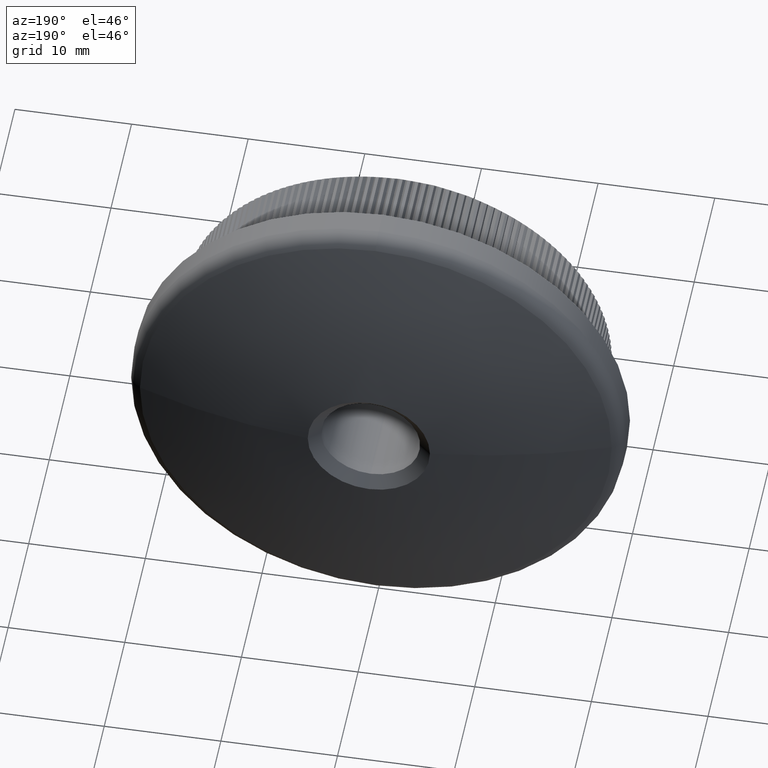
[diagram: clean part render]
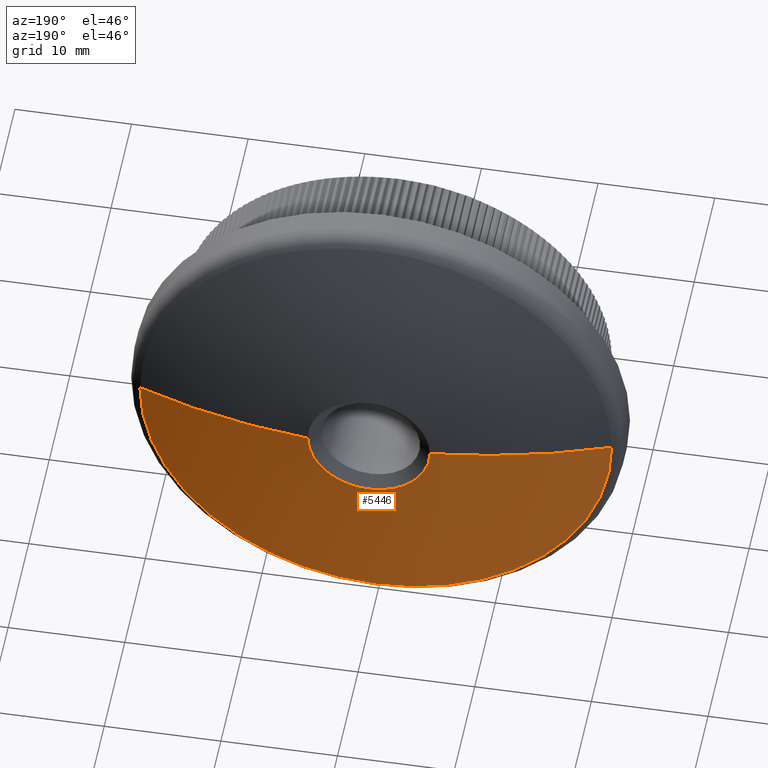
[diagram: same view with one face highlighted and labeled with its STEP entity id]
A machine part, auxiliary view. The second image highlights one B-rep face of the part: STEP entity #5446.
In plain terms, the highlighted spherical surface has radius 58.18 mm.
Its self-contained STEP definition (entity closure, byte-faithful):
#360 = AXIS2_PLACEMENT_3D ( 'NONE', #30629, #6979, #25947 ) ;
#442 = DIRECTION ( 'NONE',  ( -0.0000000000000000000, -1.000000000000000000, -0.0000000000000000000 ) ) ;
#507 = DIRECTION ( 'NONE',  ( 0.0000000000000000000, 0.0000000000000000000, -1.000000000000000000 ) ) ;
#933 = CARTESIAN_POINT ( 'NONE',  ( -5.238283644243428400, 14.76370357909867400, 1.558952815017000300E-015 ) ) ;
#1198 = AXIS2_PLACEMENT_3D ( 'NONE', #20849, #21272, #6734 ) ;
#1601 = EDGE_CURVE ( 'NONE', #5874, #20984, #14547, .T. ) ;
#1918 = AXIS2_PLACEMENT_3D ( 'NONE', #9639, #442, #19401 ) ;
#2255 = CIRCLE ( 'NONE', #1918, 5.238283644243428400 ) ;
#2604 = ORIENTED_EDGE ( 'NONE', *, *, #1601, .F. ) ;
#3289 = VERTEX_POINT ( 'NONE', #25928 ) ;
#3741 = CARTESIAN_POINT ( 'NONE',  ( 6.415047297948654100E-016, 14.76370357909867400, -5.238283644243433700 ) ) ;
#3792 = ORIENTED_EDGE ( 'NONE', *, *, #26548, .T. ) ;
#5262 = DIRECTION ( 'NONE',  ( -0.0000000000000000000, -1.000000000000000000, -0.0000000000000000000 ) ) ;
#5446 = ADVANCED_FACE ( 'NONE', ( #17799 ), #20395, .T. ) ;
#5672 = ORIENTED_EDGE ( 'NONE', *, *, #23170, .T. ) ;
#5874 = VERTEX_POINT ( 'NONE', #933 ) ;
#5902 = DIRECTION ( 'NONE',  ( 0.0000000000000000000, 0.0000000000000000000, 1.000000000000000000 ) ) ;
#6734 = DIRECTION ( 'NONE',  ( 1.000000000000000000, 0.0000000000000000000, -1.224646799147353500E-016 ) ) ;
#6979 = DIRECTION ( 'NONE',  ( 0.0000000000000000000, 1.000000000000000000, 0.0000000000000000000 ) ) ;
#9141 = VERTEX_POINT ( 'NONE', #10497 ) ;
#9469 = DIRECTION ( 'NONE',  ( 0.0000000000000000000, 0.0000000000000000000, -1.000000000000000000 ) ) ;
#9639 = CARTESIAN_POINT ( 'NONE',  ( 0.0000000000000000000, 14.76370357909867400, 0.0000000000000000000 ) ) ;
#10425 = EDGE_CURVE ( 'NONE', #5874, #14887, #2255, .T. ) ;
#10497 = CARTESIAN_POINT ( 'NONE',  ( 5.238283644243428400, 14.76370357909867400, 0.0000000000000000000 ) ) ;
#10940 = ORIENTED_EDGE ( 'NONE', *, *, #22357, .T. ) ;
#14249 = AXIS2_PLACEMENT_3D ( 'NONE', #15098, #17502, #19899 ) ;
#14547 = CIRCLE ( 'NONE', #1198, 58.18000000000007100 ) ;
#14887 = VERTEX_POINT ( 'NONE', #3741 ) ;
#15098 = CARTESIAN_POINT ( 'NONE',  ( 0.0000000000000000000, 11.37281375303810000, 0.0000000000000000000 ) ) ;
#15508 = ORIENTED_EDGE ( 'NONE', *, *, #10425, .T. ) ;
#16495 = CARTESIAN_POINT ( 'NONE',  ( -20.22134791813689200, 11.37281375303809700, 2.476400900239134100E-015 ) ) ;
#16532 = ORIENTED_EDGE ( 'NONE', *, *, #16982, .T. ) ;
#16982 = EDGE_CURVE ( 'NONE', #9141, #3289, #23577, .T. ) ;
#17324 = AXIS2_PLACEMENT_3D ( 'NONE', #28471, #9469, #23691 ) ;
#17502 = DIRECTION ( 'NONE',  ( 0.0000000000000000000, 1.000000000000000000, 0.0000000000000000000 ) ) ;
#17799 = FACE_OUTER_BOUND ( 'NONE', #18048, .T. ) ;
#18048 = EDGE_LOOP ( 'NONE', ( #2604, #15508, #10940, #16532, #3792, #5672 ) ) ;
#18736 = AXIS2_PLACEMENT_3D ( 'NONE', #26957, #5902, #29237 ) ;
#19017 = CIRCLE ( 'NONE', #360, 20.22134791813691000 ) ;
#19310 = CIRCLE ( 'NONE', #14249, 20.22134791813691000 ) ;
#19401 = DIRECTION ( 'NONE',  ( 0.0000000000000000000, 0.0000000000000000000, -1.000000000000000000 ) ) ;
#19899 = DIRECTION ( 'NONE',  ( 0.0000000000000000000, 0.0000000000000000000, -1.000000000000000000 ) ) ;
#20395 = SPHERICAL_SURFACE ( 'NONE', #18736, 58.18000000000007100 ) ;
#20849 = CARTESIAN_POINT ( 'NONE',  ( 0.0000000000000000000, -43.18000000000007100, 0.0000000000000000000 ) ) ;
#20984 = VERTEX_POINT ( 'NONE', #16495 ) ;
#21272 = DIRECTION ( 'NONE',  ( 1.224646799147353200E-016, -0.0000000000000000000, 1.000000000000000000 ) ) ;
#21971 = CARTESIAN_POINT ( 'NONE',  ( 0.0000000000000000000, 14.76370357909867400, 0.0000000000000000000 ) ) ;
#22357 = EDGE_CURVE ( 'NONE', #14887, #9141, #23118, .T. ) ;
#22379 = AXIS2_PLACEMENT_3D ( 'NONE', #21971, #5262, #507 ) ;
#23118 = CIRCLE ( 'NONE', #22379, 5.238283644243428400 ) ;
#23170 = EDGE_CURVE ( 'NONE', #29032, #20984, #19017, .T. ) ;
#23577 = CIRCLE ( 'NONE', #17324, 58.18000000000007100 ) ;
#23691 = DIRECTION ( 'NONE',  ( -1.000000000000000000, 0.0000000000000000000, 0.0000000000000000000 ) ) ;
#25928 = CARTESIAN_POINT ( 'NONE',  ( 20.22134791813689200, 11.37281375303809700, 0.0000000000000000000 ) ) ;
#25947 = DIRECTION ( 'NONE',  ( 0.0000000000000000000, 0.0000000000000000000, -1.000000000000000000 ) ) ;
#26548 = EDGE_CURVE ( 'NONE', #3289, #29032, #19310, .T. ) ;
#26957 = CARTESIAN_POINT ( 'NONE',  ( 0.0000000000000000000, -43.18000000000007100, 0.0000000000000000000 ) ) ;
#27048 = CARTESIAN_POINT ( 'NONE',  ( 0.0000000000000000000, 11.37281375303810000, -20.22134791813691000 ) ) ;
#28471 = CARTESIAN_POINT ( 'NONE',  ( 0.0000000000000000000, -43.18000000000007100, 0.0000000000000000000 ) ) ;
#29032 = VERTEX_POINT ( 'NONE', #27048 ) ;
#29237 = DIRECTION ( 'NONE',  ( 1.000000000000000000, 0.0000000000000000000, 0.0000000000000000000 ) ) ;
#30629 = CARTESIAN_POINT ( 'NONE',  ( 0.0000000000000000000, 11.37281375303810000, 0.0000000000000000000 ) ) ;